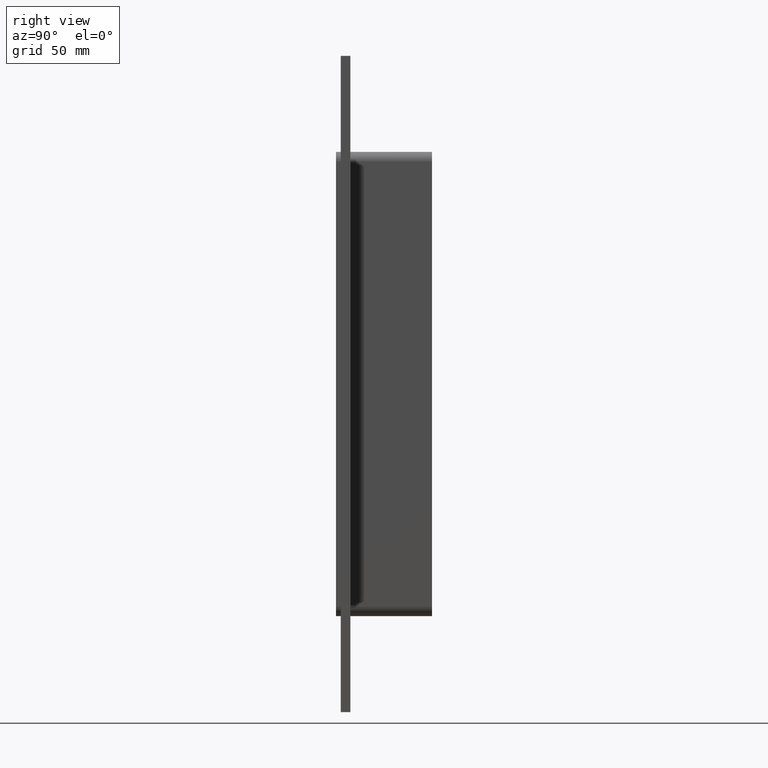
[diagram: clean part render]
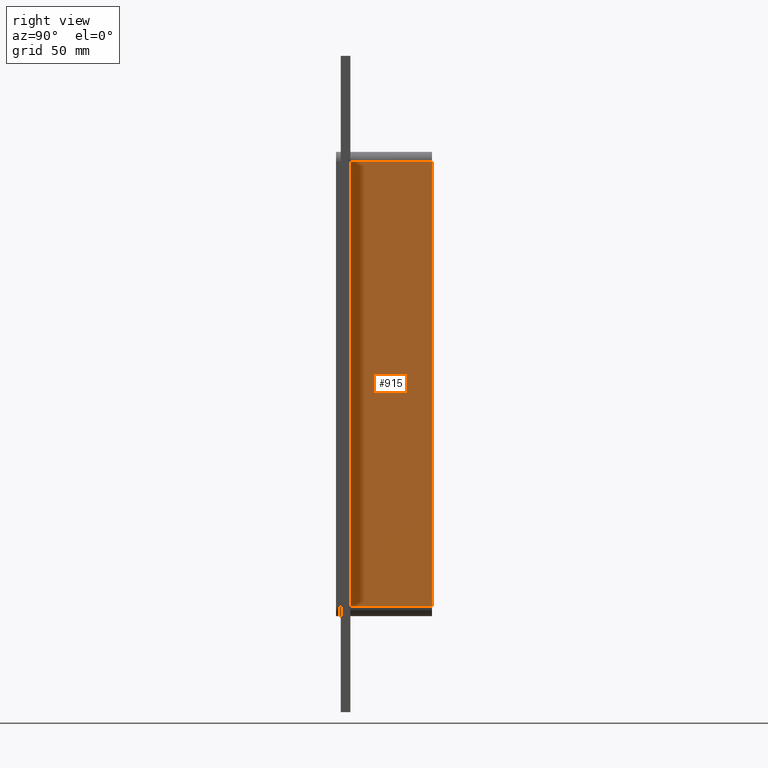
[diagram: same view with one face highlighted and labeled with its STEP entity id]
A machine part, right view. The second image highlights one B-rep face of the part: STEP entity #915.
In plain terms, the highlighted planar face has unit normal (1, 0, 0).
Its self-contained STEP definition (entity closure, byte-faithful):
#498=CARTESIAN_POINT('',(36.250000000000007,6.000000000000001,-139.0));
#499=VERTEX_POINT('',#498);
#507=CARTESIAN_POINT('',(36.250000000000007,6.000000000000001,139.0));
#508=VERTEX_POINT('',#507);
#509=CARTESIAN_POINT('',(36.250000000000007,6.000000000000001,139.0));
#510=DIRECTION('',(0.0,0.0,-1.0));
#511=VECTOR('',#510,278.0);
#512=LINE('',#509,#511);
#513=EDGE_CURVE('',#508,#499,#512,.T.);
#842=CARTESIAN_POINT('',(36.250000000000007,57.0,139.0));
#843=VERTEX_POINT('',#842);
#844=CARTESIAN_POINT('',(36.250000000000007,6.000000000000001,139.0));
#845=DIRECTION('',(0.0,1.0,0.0));
#846=VECTOR('',#845,51.0);
#847=LINE('',#844,#846);
#848=EDGE_CURVE('',#508,#843,#847,.T.);
#892=CARTESIAN_POINT('',(36.250000000000007,0.0,145.0));
#893=DIRECTION('',(1.0,0.0,0.0));
#894=DIRECTION('',(0.0,0.0,-1.0));
#895=AXIS2_PLACEMENT_3D('',#892,#893,#894);
#896=PLANE('',#895);
#897=ORIENTED_EDGE('',*,*,#513,.T.);
#898=CARTESIAN_POINT('',(36.250000000000007,57.0,-139.0));
#899=VERTEX_POINT('',#898);
#900=CARTESIAN_POINT('',(36.250000000000007,57.0,-139.0));
#901=DIRECTION('',(0.0,-1.0,0.0));
#902=VECTOR('',#901,51.0);
#903=LINE('',#900,#902);
#904=EDGE_CURVE('',#899,#499,#903,.T.);
#905=ORIENTED_EDGE('',*,*,#904,.F.);
#906=CARTESIAN_POINT('',(36.250000000000007,57.0,139.0));
#907=DIRECTION('',(0.0,0.0,-1.0));
#908=VECTOR('',#907,278.0);
#909=LINE('',#906,#908);
#910=EDGE_CURVE('',#843,#899,#909,.T.);
#911=ORIENTED_EDGE('',*,*,#910,.F.);
#912=ORIENTED_EDGE('',*,*,#848,.F.);
#913=EDGE_LOOP('',(#897,#905,#911,#912));
#914=FACE_OUTER_BOUND('',#913,.T.);
#915=ADVANCED_FACE('',(#914),#896,.T.);